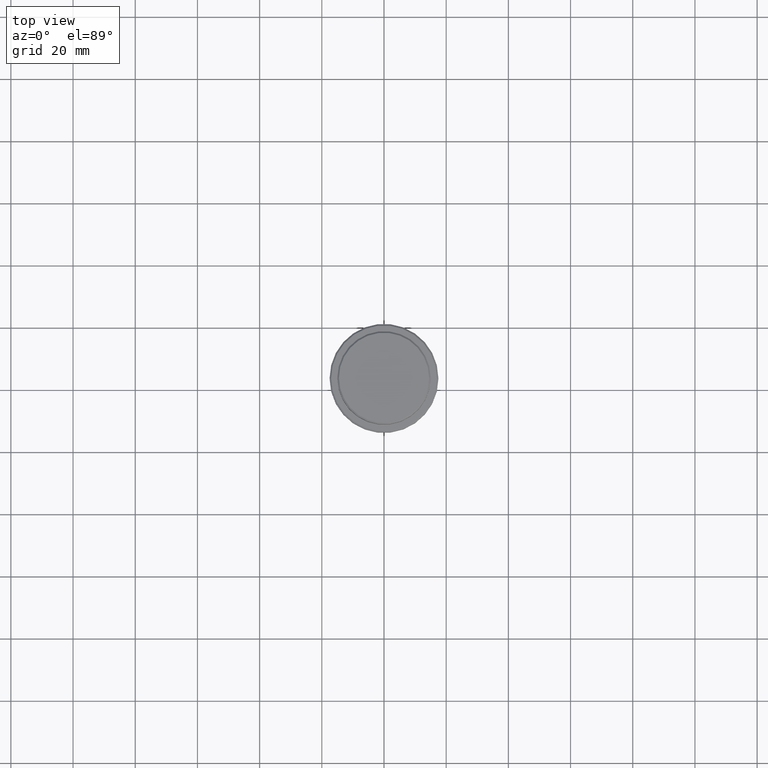
[diagram: clean part render]
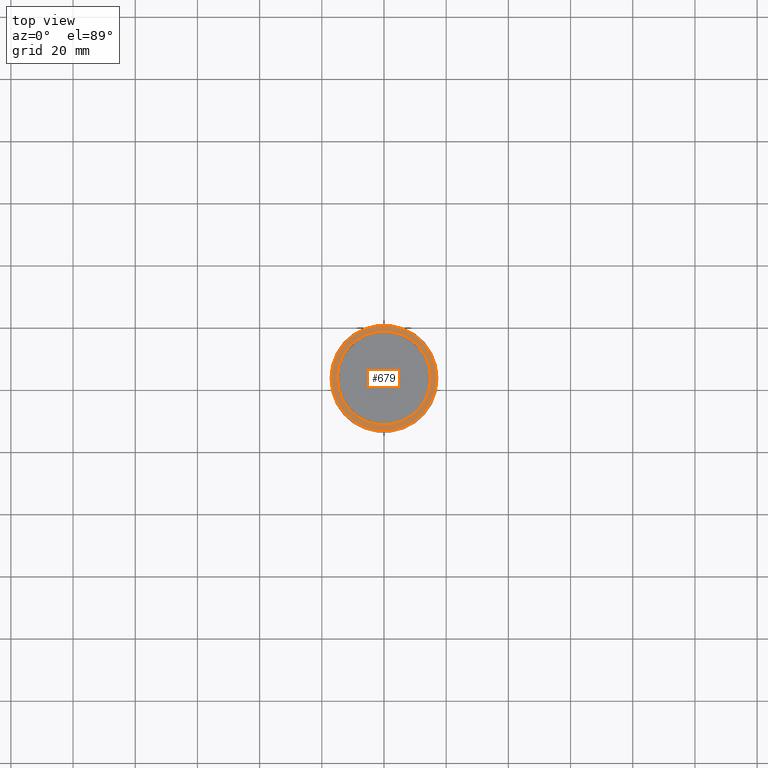
[diagram: same view with one face highlighted and labeled with its STEP entity id]
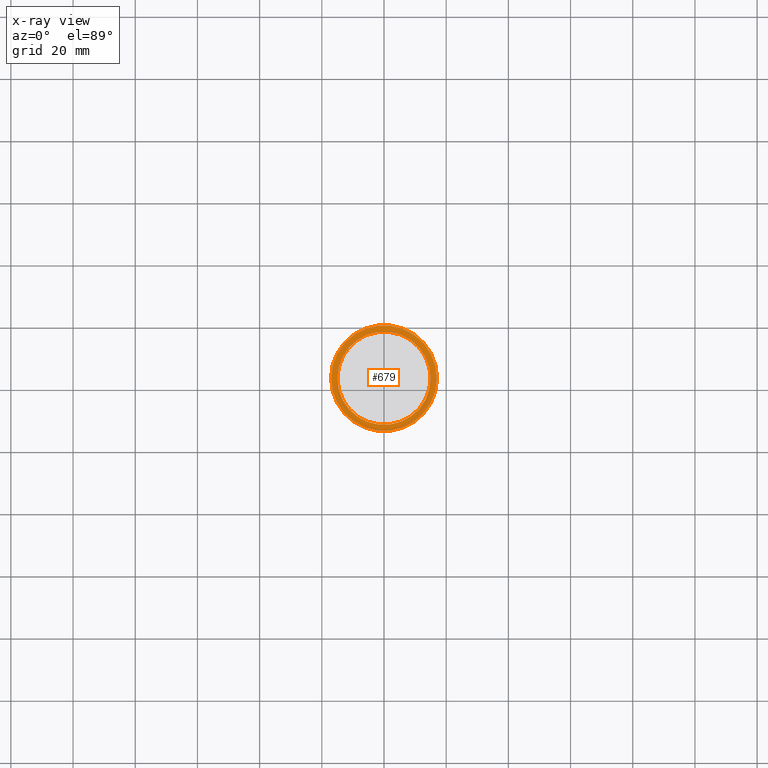
[diagram: x-ray of the same camera — body ghosted, the highlighted face saturated]
A machine part, top view. The second image highlights one B-rep face of the part: STEP entity #679.
The next image is the same camera in x-ray: the body ghosted, the highlighted face saturated — about 0% of this face is hidden behind the body in this view.
In plain terms, the highlighted planar face has unit normal (0, -0, 1).
Its self-contained STEP definition (entity closure, byte-faithful):
#53 = AXIS2_PLACEMENT_3D ( 'NONE', #263, #1368, #266 ) ;
#181 = DIRECTION ( 'NONE',  ( 1.000000000000000000, 0.000000000000000000, 0.000000000000000000 ) ) ;
#207 = ORIENTED_EDGE ( 'NONE', *, *, #988, .T. ) ;
#217 = ORIENTED_EDGE ( 'NONE', *, *, #949, .T. ) ;
#218 = CARTESIAN_POINT ( 'NONE',  ( 0.000000000000000000, 0.000000000000000000, -9.000000000000000000 ) ) ;
#235 = CARTESIAN_POINT ( 'NONE',  ( 0.000000000000000000, 14.49999999999999467, -9.000000000000000000 ) ) ;
#247 = VERTEX_POINT ( 'NONE', #882 ) ;
#263 = CARTESIAN_POINT ( 'NONE',  ( 0.000000000000000000, 0.000000000000000000, -9.000000000000000000 ) ) ;
#266 = DIRECTION ( 'NONE',  ( 1.000000000000000000, 0.000000000000000000, 0.000000000000000000 ) ) ;
#285 = DIRECTION ( 'NONE',  ( 0.000000000000000000, 0.000000000000000000, -1.000000000000000000 ) ) ;
#344 = FACE_BOUND ( 'NONE', #1018, .T. ) ;
#395 = AXIS2_PLACEMENT_3D ( 'NONE', #235, #1254, #925 ) ;
#408 = ORIENTED_EDGE ( 'NONE', *, *, #1142, .T. ) ;
#417 = AXIS2_PLACEMENT_3D ( 'NONE', #969, #1172, #181 ) ;
#452 = FACE_OUTER_BOUND ( 'NONE', #924, .T. ) ;
#464 = CIRCLE ( 'NONE', #581, 14.99999999999999289 ) ;
#498 = DIRECTION ( 'NONE',  ( 1.000000000000000000, 0.000000000000000000, 0.000000000000000000 ) ) ;
#533 = EDGE_CURVE ( 'NONE', #606, #576, #1198, .T. ) ;
#552 = AXIS2_PLACEMENT_3D ( 'NONE', #1389, #285, #498 ) ;
#576 = VERTEX_POINT ( 'NONE', #1086 ) ;
#581 = AXIS2_PLACEMENT_3D ( 'NONE', #218, #1120, #1323 ) ;
#606 = VERTEX_POINT ( 'NONE', #1324 ) ;
#679 = ADVANCED_FACE ( 'NONE', ( #452, #344 ), #1221, .T. ) ;
#746 = CIRCLE ( 'NONE', #53, 17.00000000000001421 ) ;
#780 = ORIENTED_EDGE ( 'NONE', *, *, #533, .T. ) ;
#882 = CARTESIAN_POINT ( 'NONE',  ( -14.99999999999999289, 1.836970198721028800E-15, -9.000000000000000000 ) ) ;
#924 = EDGE_LOOP ( 'NONE', ( #408, #780 ) ) ;
#925 = DIRECTION ( 'NONE',  ( 1.000000000000000000, 0.000000000000000000, 0.000000000000000000 ) ) ;
#949 = EDGE_CURVE ( 'NONE', #1218, #247, #1268, .T. ) ;
#969 = CARTESIAN_POINT ( 'NONE',  ( 0.000000000000000000, 0.000000000000000000, -9.000000000000000000 ) ) ;
#988 = EDGE_CURVE ( 'NONE', #247, #1218, #464, .T. ) ;
#1018 = EDGE_LOOP ( 'NONE', ( #217, #207 ) ) ;
#1086 = CARTESIAN_POINT ( 'NONE',  ( -17.00000000000001421, 0.000000000000000000, -9.000000000000000000 ) ) ;
#1120 = DIRECTION ( 'NONE',  ( 0.000000000000000000, 0.000000000000000000, -1.000000000000000000 ) ) ;
#1142 = EDGE_CURVE ( 'NONE', #576, #606, #746, .T. ) ;
#1172 = DIRECTION ( 'NONE',  ( -0.000000000000000000, -0.000000000000000000, 1.000000000000000000 ) ) ;
#1198 = CIRCLE ( 'NONE', #417, 17.00000000000001421 ) ;
#1218 = VERTEX_POINT ( 'NONE', #1336 ) ;
#1221 = PLANE ( 'NONE',  #395 ) ;
#1254 = DIRECTION ( 'NONE',  ( 0.000000000000000000, -0.000000000000000000, 1.000000000000000000 ) ) ;
#1268 = CIRCLE ( 'NONE', #552, 14.99999999999999289 ) ;
#1323 = DIRECTION ( 'NONE',  ( 1.000000000000000000, 0.000000000000000000, 0.000000000000000000 ) ) ;
#1324 = CARTESIAN_POINT ( 'NONE',  ( 17.00000000000001421, 2.112515728529185250E-15, -9.000000000000000000 ) ) ;
#1336 = CARTESIAN_POINT ( 'NONE',  ( 14.99999999999999289, 0.000000000000000000, -9.000000000000000000 ) ) ;
#1368 = DIRECTION ( 'NONE',  ( -0.000000000000000000, -0.000000000000000000, 1.000000000000000000 ) ) ;
#1389 = CARTESIAN_POINT ( 'NONE',  ( 0.000000000000000000, 0.000000000000000000, -9.000000000000000000 ) ) ;